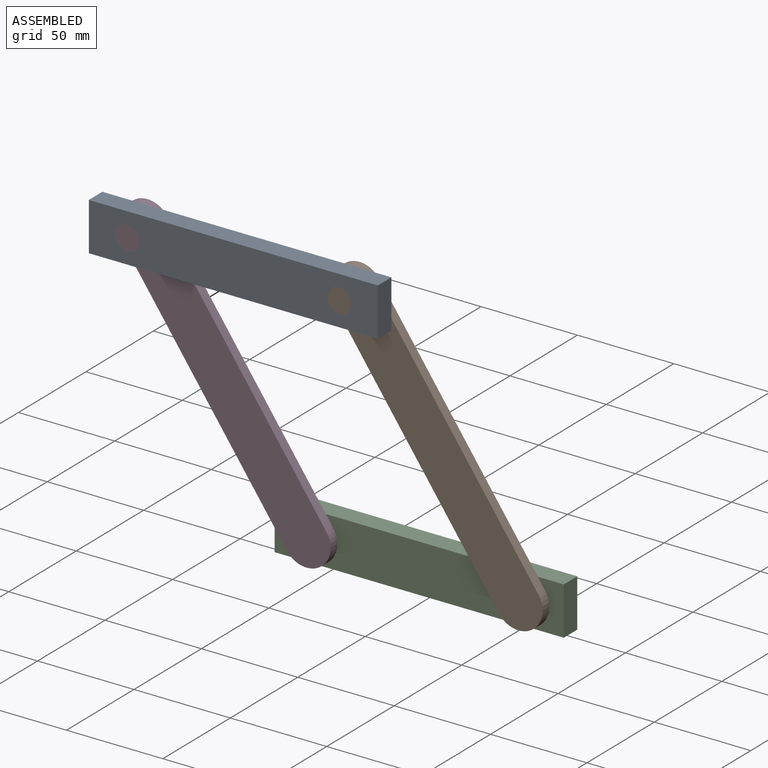
[diagram: assembled view]
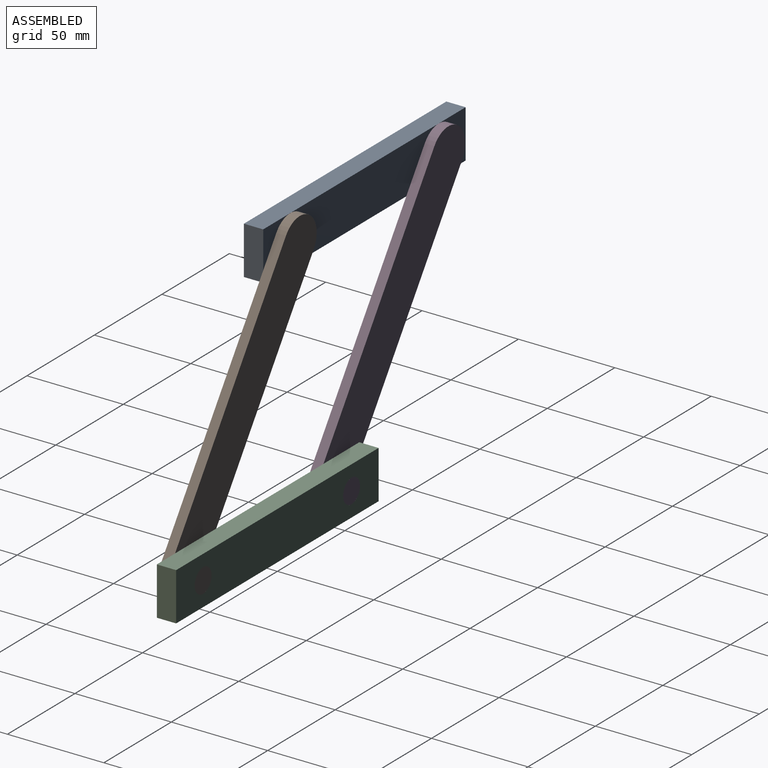
[diagram: assembled view, second angle]
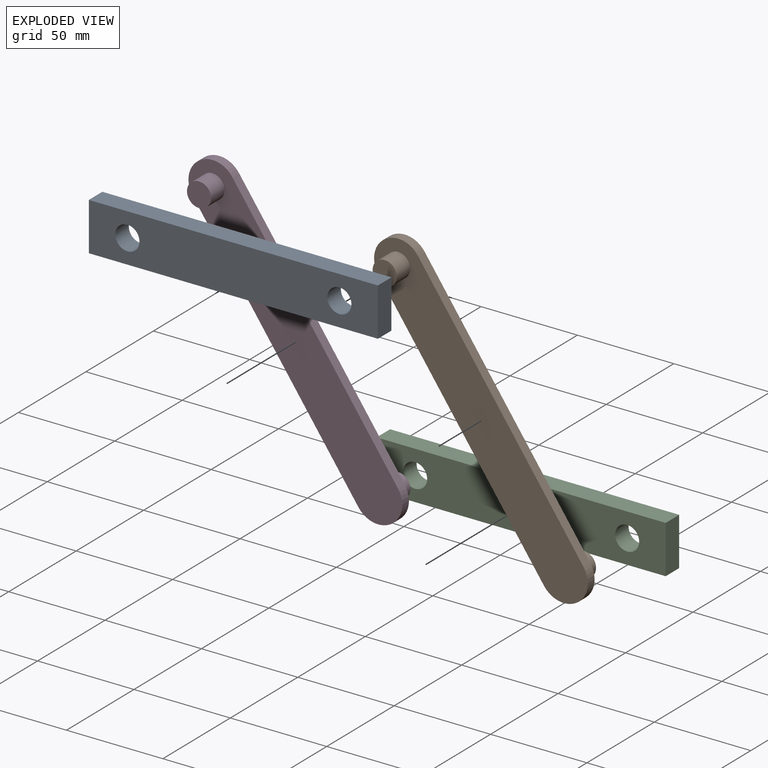
[diagram: exploded view]
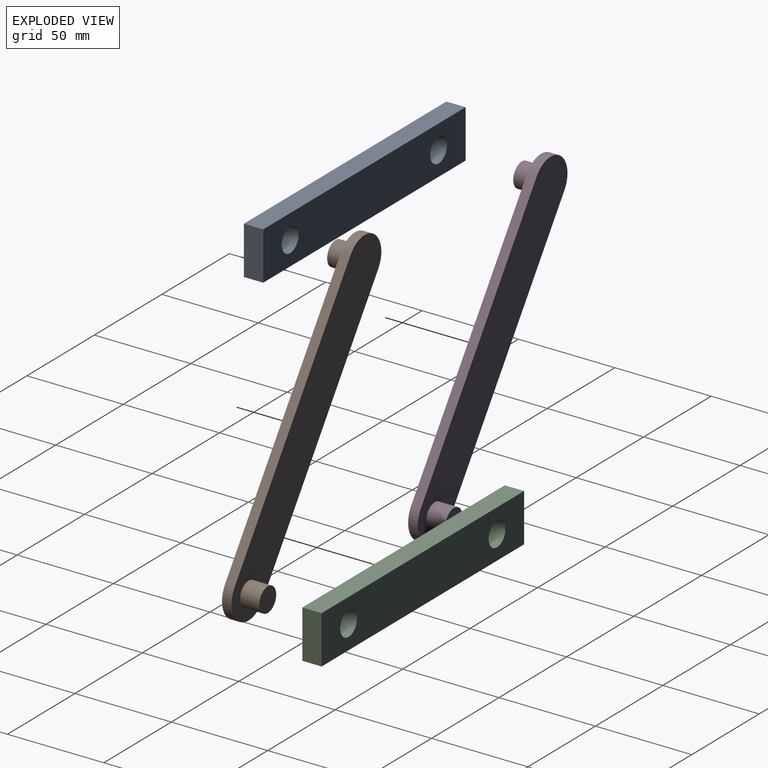
[diagram: exploded view, second angle]
ASSEMBLY  parts=4 mates=4
PART A: 8 faces, bbox 150x10x25 mm
  f0: plane 150x10mm, normal (0,0,-1), area 1500mm2, adj f1,f5,f6,f7
  f1: plane 25x10mm, normal (1,0,0), area 250mm2, adj f0,f2,f6,f7
  f2: plane 150x10mm, normal (0,0,1), area 1500mm2, adj f1,f5,f6,f7
  f3: cylinder r=6.25mm len=12.5mm, axis (0,1,0), area 392.7mm2, adj f6,f7
  f4: cylinder r=6.25mm len=12.5mm, axis (0,1,0), area 392.7mm2, adj f6,f7
  f5: plane 25x10mm, normal (-1,0,0), area 250mm2, adj f0,f2,f6,f7
  f6: plane 150x25mm, normal (0,-1,0), area 3504.6mm2, adj f0,f1,f2,f3,f4,f5
  f7: plane 150x25mm, normal (0,1,0), area 3504.6mm2, adj f0,f1,f2,f3,f4,f5
PART B: 10 faces, bbox 25x25x175 mm
  f0: plane 150x5mm, normal (1,0,0), area 750mm2, adj f1,f3,f4,f5
  f1: cylinder r=12.5mm len=25mm, axis (0,1,0), area 196.3mm2, adj f0,f2,f4,f5
  f2: plane 150x5mm, normal (-1,0,0), area 750mm2, adj f1,f3,f4,f5
  f3: cylinder r=12.5mm len=25mm, axis (0,1,0), area 196.3mm2, adj f0,f2,f4,f5
  f4: plane 175x25mm, normal (0,-1,0), area 4118.2mm2, adj f0,f1,f2,f3,f6
  f5: plane 175x25mm, normal (0,1,0), area 4118.2mm2, adj f0,f1,f2,f3,f8
  f6: cylinder r=6.25mm len=12.5mm, axis (0,1,0), area 392.7mm2, adj f4,f7
  f7: plane 12.5x12.5mm, normal (0,-1,0), area 122.7mm2, adj f6
  f8: cylinder r=6.25mm len=12.5mm, axis (0,-1,0), area 392.7mm2, adj f5,f9
  f9: plane 12.5x12.5mm, normal (0,1,0), area 122.7mm2, adj f8
PART C: same geometry as A
PART D: same geometry as B
PLACE A t=(-85.93,-15,122.95)mm
PLACE B rot(axis=(0,-1,0),35deg) t=(12.03,-10,61.47)mm
PLACE C at identity fixed
PLACE D rot(axis=(0,-1,0),35deg) t=(-97.97,-10,61.47)mm
MATE revolute C.f4 <-> B.f3  axis (0,1,0) through (55,-10,0)mm
MATE revolute C.f3 <-> D.f3  axis (0,1,0) through (-55,-10,0)mm
MATE revolute D.f1 <-> A.f3  axis (0,1,0) through (-140.93,-25,122.95)mm
MATE revolute A.f4 <-> B.f1  axis (0,1,0) through (-30.93,-25,122.95)mm
